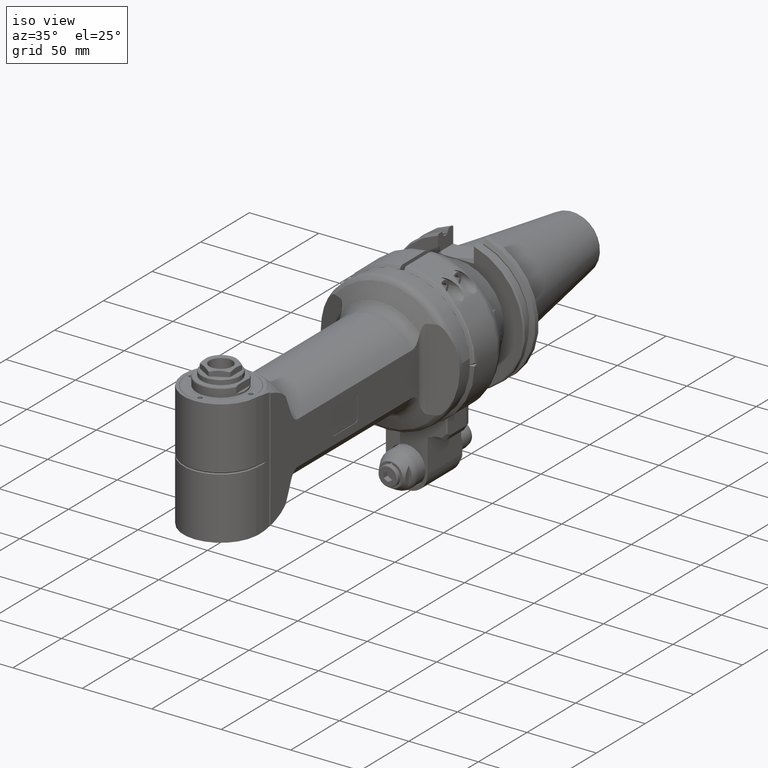
[diagram: clean part render]
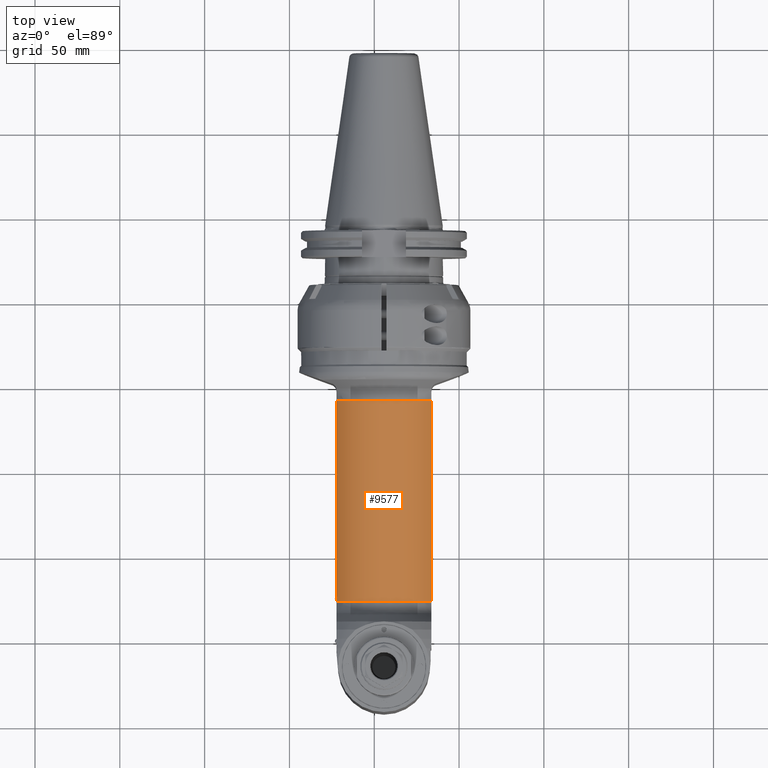
[diagram: tour spotlight — one face highlighted and labeled with its STEP entity id]
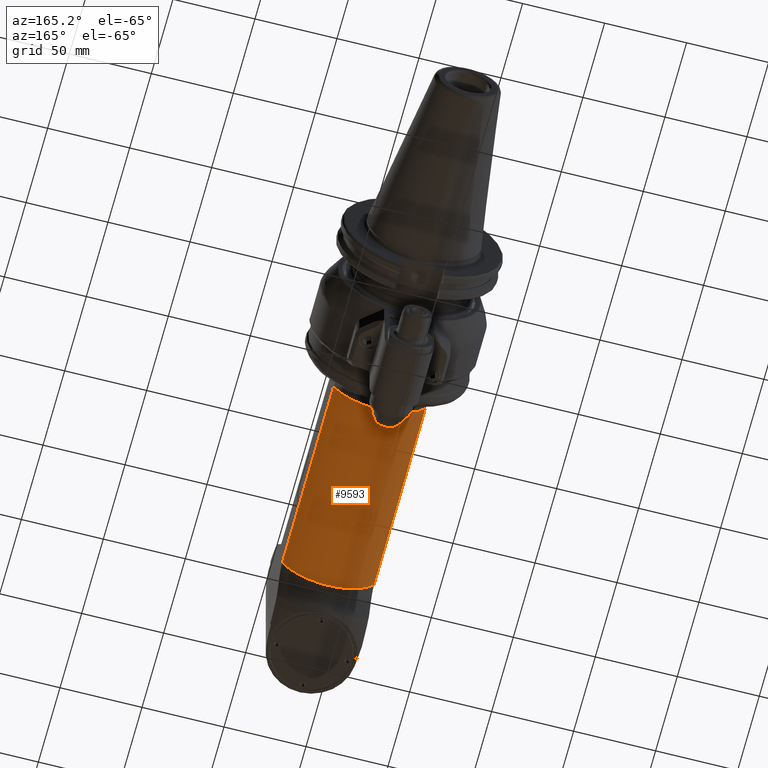
[diagram: tour spotlight — one face highlighted and labeled with its STEP entity id]
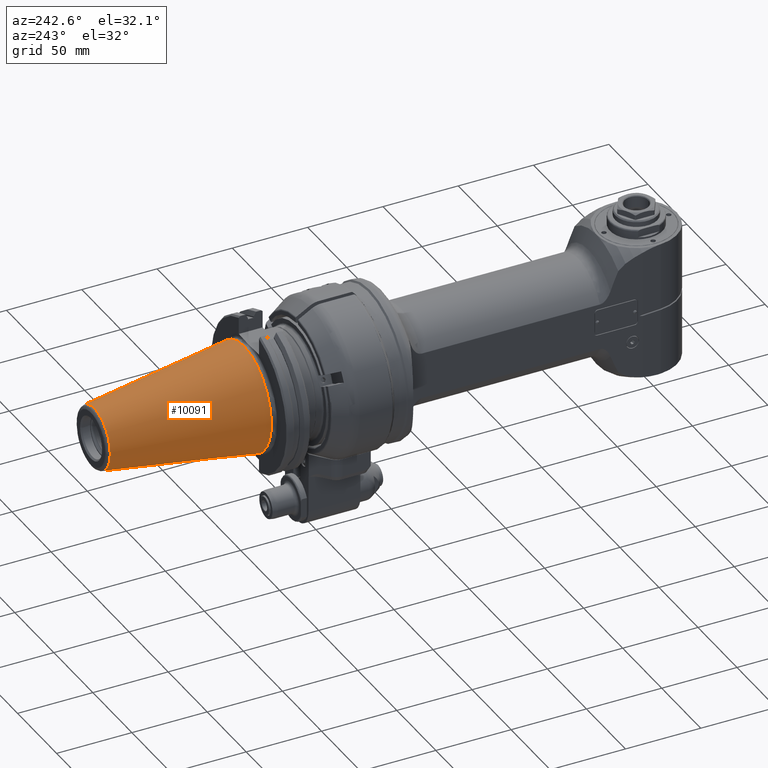
[diagram: tour spotlight — one face highlighted and labeled with its STEP entity id]
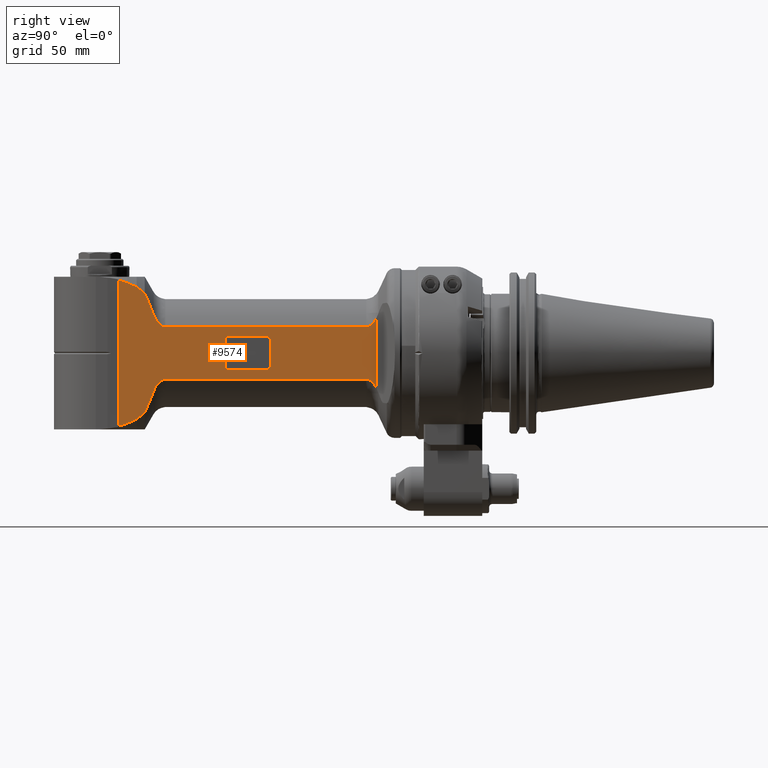
[diagram: tour spotlight — one face highlighted and labeled with its STEP entity id]
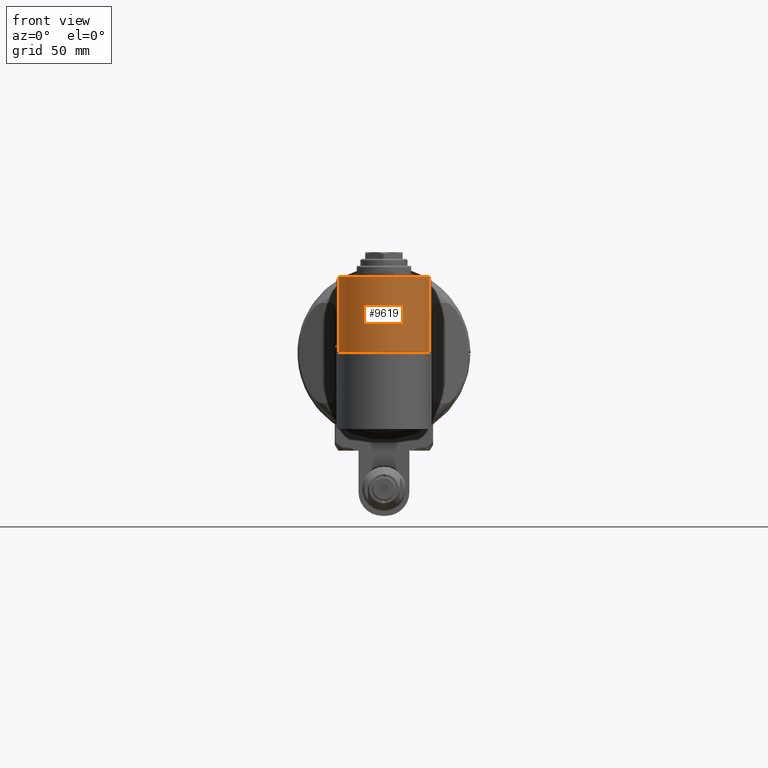
[diagram: tour spotlight — one face highlighted and labeled with its STEP entity id]
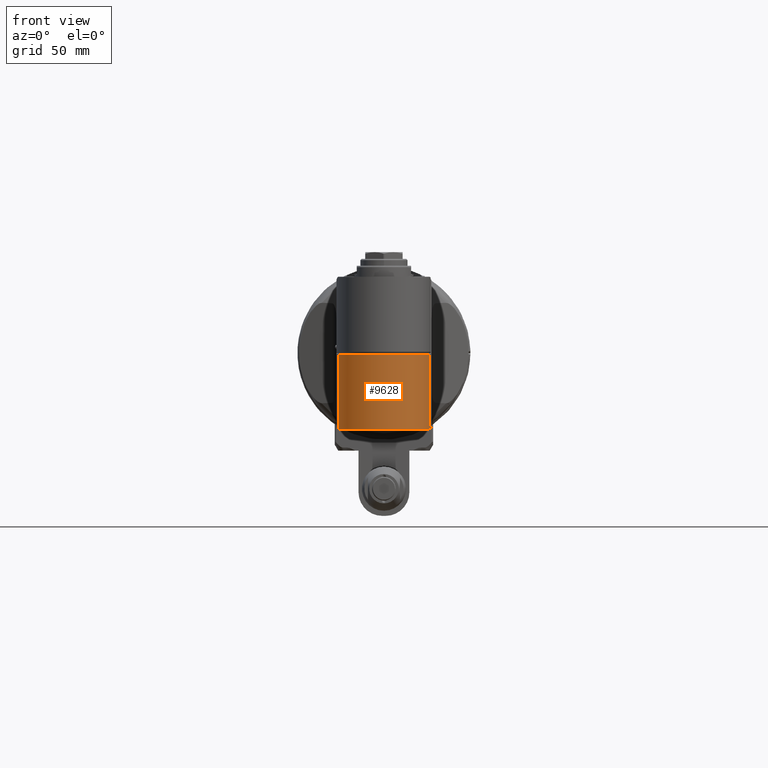
[diagram: tour spotlight — one face highlighted and labeled with its STEP entity id]
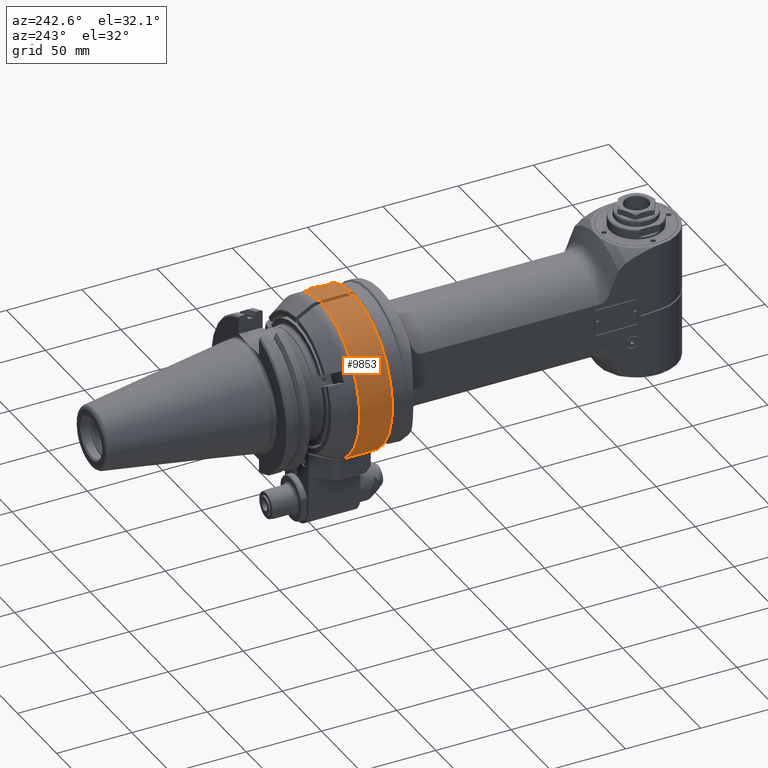
[diagram: tour spotlight — one face highlighted and labeled with its STEP entity id]
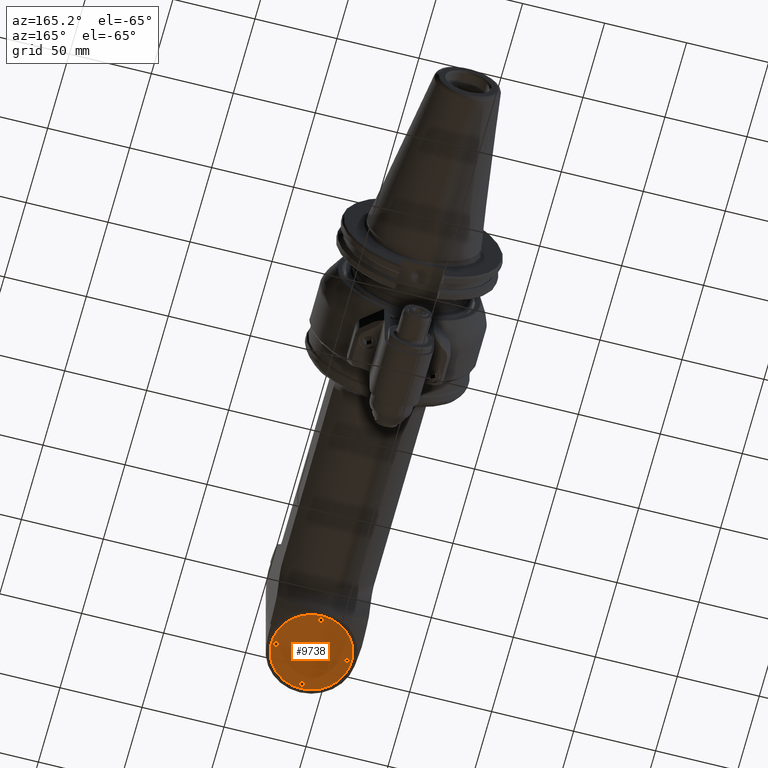
[diagram: tour spotlight — one face highlighted and labeled with its STEP entity id]
A machine part: a face-by-face anatomy tour. The part has 596 B-rep faces; the first image is the clean iso view, then the 8 largest visible faces are spotlighted one at a time (largest first), each with its STEP entity span.

Face 1 — top view, entity #9577. In plain terms, the highlighted cylindrical surface (partial cylindrical patch) has radius 32 mm, axis along (-0, 1, 0).
Definition (entity closure, byte-faithful):
#612=CYLINDRICAL_SURFACE('',#10303,32.);
#776=CIRCLE('',#10301,32.);
#778=CIRCLE('',#10304,32.);
#1339=FACE_OUTER_BOUND('',#1936,.T.);
#1936=EDGE_LOOP('',(#6411,#6412,#6413,#6414));
#2619=LINE('',#14576,#3278);
#2626=LINE('',#14740,#3285);
#3278=VECTOR('',#11511,118.3910979735);
#3285=VECTOR('',#11534,118.3910979735);
#3941=VERTEX_POINT('',#14562);
#3942=VERTEX_POINT('',#14575);
#3964=VERTEX_POINT('',#14715);
#3967=VERTEX_POINT('',#14739);
#4901=EDGE_CURVE('',#3942,#3941,#2619,.T.);
#4926=EDGE_CURVE('',#3964,#3941,#776,.T.);
#4930=EDGE_CURVE('',#3964,#3967,#2626,.T.);
#4931=EDGE_CURVE('',#3942,#3967,#778,.T.);
#6411=ORIENTED_EDGE('',*,*,#4926,.F.);
#6412=ORIENTED_EDGE('',*,*,#4930,.T.);
#6413=ORIENTED_EDGE('',*,*,#4931,.F.);
#6414=ORIENTED_EDGE('',*,*,#4901,.T.);
#9577=ADVANCED_FACE('',(#1339),#612,.T.);
#10301=AXIS2_PLACEMENT_3D('',#14716,#11528,#11529);
#10303=AXIS2_PLACEMENT_3D('',#14738,#11532,#11533);
#10304=AXIS2_PLACEMENT_3D('',#14741,#11535,#11536);
#11511=DIRECTION('',(-1.,0.,0.));
#11528=DIRECTION('center_axis',(-1.,0.,0.));
#11529=DIRECTION('ref_axis',(0.,-0.484122918275906,-0.875000000000012));
#11532=DIRECTION('center_axis',(-1.,0.,0.));
#11533=DIRECTION('ref_axis',(0.,-1.,0.));
#11534=DIRECTION('',(1.,0.,0.));
#11535=DIRECTION('center_axis',(1.,0.,0.));
#11536=DIRECTION('ref_axis',(0.,-1.,0.));
#14562=CARTESIAN_POINT('',(32.99009987301,-15.49193338483,28.));
#14575=CARTESIAN_POINT('',(151.3811978465,-15.49193338483,28.));
#14576=CARTESIAN_POINT('',(151.3811978465,-15.49193338483,28.));
#14715=CARTESIAN_POINT('',(32.99009987301,-15.49193338483,-28.));
#14716=CARTESIAN_POINT('Origin',(32.99009987301,0.,0.));
#14738=CARTESIAN_POINT('Origin',(41.64644709714,0.,0.));
#14739=CARTESIAN_POINT('',(151.3811978465,-15.49193338483,-28.));
#14740=CARTESIAN_POINT('',(32.99009987301,-15.49193338483,-28.));
#14741=CARTESIAN_POINT('Origin',(151.3811978465,0.,0.));

Face 2 — auxiliary view, entity #9593. In plain terms, the highlighted cylindrical surface (partial cylindrical patch) has radius 32 mm, axis along (-0, 1, 0).
Definition (entity closure, byte-faithful):
#614=CYLINDRICAL_SURFACE('',#10342,32.);
#796=CIRCLE('',#10340,32.);
#798=CIRCLE('',#10343,32.);
#1355=FACE_OUTER_BOUND('',#1955,.T.);
#1955=EDGE_LOOP('',(#6530,#6531,#6532,#6533));
#2621=LINE('',#14642,#3280);
#2639=LINE('',#14985,#3298);
#3280=VECTOR('',#11513,118.3910979735);
#3298=VECTOR('',#11605,118.3910979735);
#3953=VERTEX_POINT('',#14626);
#3954=VERTEX_POINT('',#14641);
#4009=VERTEX_POINT('',#14971);
#4010=VERTEX_POINT('',#14984);
#4913=EDGE_CURVE('',#3954,#3953,#2621,.T.);
#4986=EDGE_CURVE('',#4010,#4009,#2639,.T.);
#5013=EDGE_CURVE('',#3954,#4009,#796,.T.);
#5015=EDGE_CURVE('',#4010,#3953,#798,.T.);
#6530=ORIENTED_EDGE('',*,*,#5013,.F.);
#6531=ORIENTED_EDGE('',*,*,#4913,.T.);
#6532=ORIENTED_EDGE('',*,*,#5015,.F.);
#6533=ORIENTED_EDGE('',*,*,#4986,.T.);
#9593=ADVANCED_FACE('',(#1355),#614,.T.);
#10340=AXIS2_PLACEMENT_3D('',#15116,#11628,#11629);
#10342=AXIS2_PLACEMENT_3D('',#15118,#11632,#11633);
#10343=AXIS2_PLACEMENT_3D('',#15119,#11634,#11635);
#11513=DIRECTION('',(1.,0.,0.));
#11605=DIRECTION('',(-1.,0.,0.));
#11628=DIRECTION('center_axis',(-1.,0.,0.));
#11629=DIRECTION('ref_axis',(0.,0.484122918275906,0.875000000000012));
#11632=DIRECTION('center_axis',(-1.,0.,0.));
#11633=DIRECTION('ref_axis',(0.,1.,1.22464679914735E-16));
#11634=DIRECTION('center_axis',(1.,0.,0.));
#11635=DIRECTION('ref_axis',(0.,1.,0.));
#14626=CARTESIAN_POINT('',(151.3811978465,15.49193338483,28.));
#14641=CARTESIAN_POINT('',(32.99009987301,15.49193338483,28.));
#14642=CARTESIAN_POINT('',(32.99009987301,15.49193338483,28.));
#14971=CARTESIAN_POINT('',(32.99009987301,15.49193338483,-28.));
#14984=CARTESIAN_POINT('',(151.3811978465,15.49193338483,-28.));
#14985=CARTESIAN_POINT('',(151.3811978465,15.49193338483,-28.));
#15116=CARTESIAN_POINT('Origin',(32.99009987301,0.,0.));
#15118=CARTESIAN_POINT('Origin',(41.64644709714,0.,0.));
#15119=CARTESIAN_POINT('Origin',(151.3811978465,0.,0.));

Face 3 — auxiliary view, entity #10091. In plain terms, the highlighted conical surface has half-angle 8.297 deg.
Definition (entity closure, byte-faithful):
#175=CONICAL_SURFACE('',#11362,27.67265681028,0.144812411498922);
#1291=CIRCLE('',#11360,34.925);
#1292=CIRCLE('',#11361,34.925);
#1293=CIRCLE('',#11363,20.42031362057);
#1294=CIRCLE('',#11364,20.42031362057);
#1853=FACE_OUTER_BOUND('',#2528,.T.);
#2528=EDGE_LOOP('',(#8955,#8956,#8957,#8958,#8959,#8960));
#3192=LINE('',#20253,#3851);
#3851=VECTOR('',#14218,27.67265681028);
#4805=VERTEX_POINT('',#20246);
#4806=VERTEX_POINT('',#20247);
#4807=VERTEX_POINT('',#20252);
#4808=VERTEX_POINT('',#20254);
#6215=EDGE_CURVE('',#4805,#4806,#1291,.T.);
#6217=EDGE_CURVE('',#4806,#4805,#1292,.T.);
#6218=EDGE_CURVE('',#4805,#4807,#3192,.T.);
#6219=EDGE_CURVE('',#4808,#4807,#1293,.T.);
#6220=EDGE_CURVE('',#4807,#4808,#1294,.T.);
#8955=ORIENTED_EDGE('',*,*,#6215,.F.);
#8956=ORIENTED_EDGE('',*,*,#6218,.T.);
#8957=ORIENTED_EDGE('',*,*,#6219,.F.);
#8958=ORIENTED_EDGE('',*,*,#6220,.F.);
#8959=ORIENTED_EDGE('',*,*,#6218,.F.);
#8960=ORIENTED_EDGE('',*,*,#6217,.F.);
#10091=ADVANCED_FACE('',(#1853),#175,.T.);
#11360=AXIS2_PLACEMENT_3D('',#20248,#14211,#14212);
#11361=AXIS2_PLACEMENT_3D('',#20250,#14214,#14215);
#11362=AXIS2_PLACEMENT_3D('',#20251,#14216,#14217);
#11363=AXIS2_PLACEMENT_3D('',#20255,#14219,#14220);
#11364=AXIS2_PLACEMENT_3D('',#20256,#14221,#14222);
#14211=DIRECTION('center_axis',(0.,-1.,0.));
#14212=DIRECTION('ref_axis',(0.,0.,1.));
#14214=DIRECTION('center_axis',(0.,-1.,0.));
#14215=DIRECTION('ref_axis',(0.,0.,1.));
#14216=DIRECTION('center_axis',(0.,-1.,0.));
#14217=DIRECTION('ref_axis',(0.,0.,1.));
#14218=DIRECTION('',(-1.76724869581176E-17,0.98953299358046,0.144306807239621));
#14219=DIRECTION('center_axis',(0.,1.,0.));
#14220=DIRECTION('ref_axis',(0.,0.,1.));
#14221=DIRECTION('center_axis',(0.,1.,0.));
#14222=DIRECTION('ref_axis',(0.,0.,1.));
#20246=CARTESIAN_POINT('',(0.,74.5,-34.925));
#20247=CARTESIAN_POINT('',(4.27707894602218E-15,74.4999999999999,34.9250000000004));
#20248=CARTESIAN_POINT('Origin',(0.,74.5,0.));
#20250=CARTESIAN_POINT('Origin',(0.,74.5,0.));
#20251=CARTESIAN_POINT('Origin',(0.,124.230383509,0.));
#20252=CARTESIAN_POINT('',(2.50076717129998E-15,173.960767018098,-20.4203136205566));
#20253=CARTESIAN_POINT('',(3.38892305866126E-15,124.230383509,-27.67265681028));
#20254=CARTESIAN_POINT('',(-20.42031362057,173.9607670181,-2.50076717130162E-15));
#20255=CARTESIAN_POINT('Origin',(0.,173.9607670181,0.));
#20256=CARTESIAN_POINT('Origin',(0.,173.9607670181,0.));

Face 4 — right view, entity #9574. In plain terms, the highlighted planar face has unit normal (-1, -0, 0).
Definition (entity closure, byte-faithful):
#231=FACE_BOUND('',#1933,.T.);
#316=(
BOUNDED_CURVE()
B_SPLINE_CURVE(2,(#14593,#14594,#14595),.UNSPECIFIED.,.F.,.F.)
B_SPLINE_CURVE_WITH_KNOTS((3,3),(2.03905497828461,3.44407312542204),
 .UNSPECIFIED.)
CURVE()
GEOMETRIC_REPRESENTATION_ITEM()
RATIONAL_B_SPLINE_CURVE((1.39135917011265,1.50428489523826,1.58701905543919))
REPRESENTATION_ITEM('')
);
#317=(
BOUNDED_CURVE()
B_SPLINE_CURVE(2,(#14597,#14598,#14599),.UNSPECIFIED.,.F.,.F.)
B_SPLINE_CURVE_WITH_KNOTS((3,3),(0.672694750629335,1.01635820032656),
 .UNSPECIFIED.)
CURVE()
GEOMETRIC_REPRESENTATION_ITEM()
RATIONAL_B_SPLINE_CURVE((1.09614308002075,1.11935469989397,1.14119005597969))
REPRESENTATION_ITEM('')
);
#318=(
BOUNDED_CURVE()
B_SPLINE_CURVE(2,(#14601,#14602,#14603),.UNSPECIFIED.,.F.,.F.)
B_SPLINE_CURVE_WITH_KNOTS((3,3),(0.271465993873518,0.534546793771528),
 .UNSPECIFIED.)
CURVE()
GEOMETRIC_REPRESENTATION_ITEM()
RATIONAL_B_SPLINE_CURVE((1.02892391246967,1.04269703277794,1.05600085717814))
REPRESENTATION_ITEM('')
);
#319=(
BOUNDED_CURVE()
B_SPLINE_CURVE(2,(#14605,#14606,#14607),.UNSPECIFIED.,.F.,.F.)
B_SPLINE_CURVE_WITH_KNOTS((3,3),(0.055537346833267,0.267471575188214),
 .UNSPECIFIED.)
CURVE()
GEOMETRIC_REPRESENTATION_ITEM()
RATIONAL_B_SPLINE_CURVE((1.00475750015511,1.01380938808157,1.02266603537252))
REPRESENTATION_ITEM('')
);
#320=(
BOUNDED_CURVE()
B_SPLINE_CURVE(2,(#14611,#14612,#14613),.UNSPECIFIED.,.F.,.F.)
B_SPLINE_CURVE_WITH_KNOTS((3,3),(19.4953049597711,19.7072392303483),
 .UNSPECIFIED.)
CURVE()
GEOMETRIC_REPRESENTATION_ITEM()
RATIONAL_B_SPLINE_CURVE((1.02266613989085,1.01380949169473,1.00475760284315))
REPRESENTATION_ITEM('')
);
#321=(
BOUNDED_CURVE()
B_SPLINE_CURVE(2,(#14615,#14616,#14617),.UNSPECIFIED.,.F.,.F.)
B_SPLINE_CURVE_WITH_KNOTS((3,3),(15.4491780936748,15.7122429200567),
 .UNSPECIFIED.)
CURVE()
GEOMETRIC_REPRESENTATION_ITEM()
RATIONAL_B_SPLINE_CURVE((1.0559652874169,1.04266191113553,1.02888925475358))
REPRESENTATION_ITEM('')
);
#322=(
BOUNDED_CURVE()
B_SPLINE_CURVE(2,(#14619,#14620,#14621),.UNSPECIFIED.,.F.,.F.)
B_SPLINE_CURVE_WITH_KNOTS((3,3),(11.9199200040541,12.263555348694),
 .UNSPECIFIED.)
CURVE()
GEOMETRIC_REPRESENTATION_ITEM()
RATIONAL_B_SPLINE_CURVE((1.14112647971063,1.11929234008351,1.09608201334124))
REPRESENTATION_ITEM('')
);
#323=(
BOUNDED_CURVE()
B_SPLINE_CURVE(2,(#14623,#14624,#14625),.UNSPECIFIED.,.F.,.F.)
B_SPLINE_CURVE_WITH_KNOTS((3,3),(11.1423435471514,12.5471695145456),
 .UNSPECIFIED.)
CURVE()
GEOMETRIC_REPRESENTATION_ITEM()
RATIONAL_B_SPLINE_CURVE((1.58681804929736,1.50409436790844,1.39118294555019))
REPRESENTATION_ITEM('')
);
#395=B_SPLINE_CURVE_WITH_KNOTS('',3,(#14563,#14564,#14565,#14566,#14567,
#14568,#14569,#14570,#14571,#14572,#14573,#14574),.UNSPECIFIED.,.F.,.F.,
(4,2,2,2,2,4),(-2.93597407218818,-2.82337724519284,-2.69378102431655,-2.51186335157645,
-2.32994567883634,-2.12339512890314),.UNSPECIFIED.);
#396=B_SPLINE_CURVE_WITH_KNOTS('',3,(#14578,#14579,#14580,#14581,#14582,
#14583,#14584,#14585,#14586,#14587,#14588,#14589,#14590,#14591),
 .UNSPECIFIED.,.F.,.F.,(4,2,2,2,2,2,4),(-3.92307824233944,-3.77852981809237,
-3.54200246554002,-3.36008479279991,-3.17816712005981,-3.04857089918351,
-2.93597407218818),.UNSPECIFIED.);
#397=B_SPLINE_CURVE_WITH_KNOTS('',3,(#14627,#14628,#14629,#14630,#14631,
#14632,#14633,#14634,#14635,#14636,#14637,#14638,#14639,#14640),
 .UNSPECIFIED.,.F.,.F.,(4,2,2,2,2,2,4),(-2.93597407218818,-2.82337724519285,
-2.69378102431655,-2.51186335157645,-2.32994567883634,-2.09341832628399,
-1.94886990203693),.UNSPECIFIED.);
#398=B_SPLINE_CURVE_WITH_KNOTS('',3,(#14643,#14644,#14645,#14646,#14647,
#14648,#14649,#14650,#14651,#14652,#14653,#14654),.UNSPECIFIED.,.F.,.F.,
(4,2,2,2,2,4),(-3.74855301568806,-3.54200246554002,-3.36008479279991,-3.17816712005981,
-3.04857089918352,-2.93597407218818),.UNSPECIFIED.);
#772=CIRCLE('',#10294,2.);
#773=CIRCLE('',#10296,2.);
#774=CIRCLE('',#10297,2.);
#775=CIRCLE('',#10298,2.);
#1336=FACE_OUTER_BOUND('',#1932,.T.);
#1932=EDGE_LOOP('',(#6375,#6376,#6377,#6378,#6379,#6380,#6381,#6382,#6383,
#6384,#6385,#6386,#6387,#6388,#6389,#6390));
#1933=EDGE_LOOP('',(#6391,#6392,#6393,#6394,#6395,#6396,#6397,#6398));
#2612=LINE('',#14538,#3271);
#2618=LINE('',#14561,#3277);
#2619=LINE('',#14576,#3278);
#2620=LINE('',#14609,#3279);
#2621=LINE('',#14642,#3280);
#2622=LINE('',#14656,#3281);
#2623=LINE('',#14660,#3282);
#2624=LINE('',#14664,#3283);
#3271=VECTOR('',#11488,15.5);
#3277=VECTOR('',#11510,41.77019528795);
#3278=VECTOR('',#11511,118.3910979735);
#3279=VECTOR('',#11512,10.);
#3280=VECTOR('',#11513,118.3910979735);
#3281=VECTOR('',#11514,22.5);
#3282=VECTOR('',#11517,15.5);
#3283=VECTOR('',#11520,22.5);
#3930=VERTEX_POINT('',#14535);
#3931=VERTEX_POINT('',#14537);
#3938=VERTEX_POINT('',#14555);
#3939=VERTEX_POINT('',#14559);
#3940=VERTEX_POINT('',#14560);
#3941=VERTEX_POINT('',#14562);
#3942=VERTEX_POINT('',#14575);
#3943=VERTEX_POINT('',#14577);
#3944=VERTEX_POINT('',#14592);
#3945=VERTEX_POINT('',#14596);
#3946=VERTEX_POINT('',#14600);
#3947=VERTEX_POINT('',#14604);
#3948=VERTEX_POINT('',#14608);
#3949=VERTEX_POINT('',#14610);
#3950=VERTEX_POINT('',#14614);
#3951=VERTEX_POINT('',#14618);
#3952=VERTEX_POINT('',#14622);
#3953=VERTEX_POINT('',#14626);
#3954=VERTEX_POINT('',#14641);
#3955=VERTEX_POINT('',#14655);
#3956=VERTEX_POINT('',#14657);
#3957=VERTEX_POINT('',#14659);
#3958=VERTEX_POINT('',#14661);
#3959=VERTEX_POINT('',#14663);
#4888=EDGE_CURVE('',#3931,#3930,#2612,.T.);
#4898=EDGE_CURVE('',#3930,#3938,#772,.T.);
#4899=EDGE_CURVE('',#3939,#3940,#2618,.T.);
#4900=EDGE_CURVE('',#3941,#3939,#395,.T.);
#4901=EDGE_CURVE('',#3942,#3941,#2619,.T.);
#4902=EDGE_CURVE('',#3943,#3942,#396,.T.);
#4903=EDGE_CURVE('',#3944,#3943,#316,.T.);
#4904=EDGE_CURVE('',#3945,#3944,#317,.T.);
#4905=EDGE_CURVE('',#3946,#3945,#318,.T.);
#4906=EDGE_CURVE('',#3947,#3946,#319,.T.);
#4907=EDGE_CURVE('',#3948,#3947,#2620,.T.);
#4908=EDGE_CURVE('',#3949,#3948,#320,.T.);
#4909=EDGE_CURVE('',#3950,#3949,#321,.T.);
#4910=EDGE_CURVE('',#3951,#3950,#322,.T.);
#4911=EDGE_CURVE('',#3952,#3951,#323,.T.);
#4912=EDGE_CURVE('',#3953,#3952,#397,.T.);
#4913=EDGE_CURVE('',#3954,#3953,#2621,.T.);
#4914=EDGE_CURVE('',#3940,#3954,#398,.T.);
#4915=EDGE_CURVE('',#3938,#3955,#2622,.T.);
#4916=EDGE_CURVE('',#3955,#3956,#773,.T.);
#4917=EDGE_CURVE('',#3956,#3957,#2623,.T.);
#4918=EDGE_CURVE('',#3957,#3958,#774,.T.);
#4919=EDGE_CURVE('',#3958,#3959,#2624,.T.);
#4920=EDGE_CURVE('',#3959,#3931,#775,.T.);
#6375=ORIENTED_EDGE('',*,*,#4899,.F.);
#6376=ORIENTED_EDGE('',*,*,#4900,.F.);
#6377=ORIENTED_EDGE('',*,*,#4901,.F.);
#6378=ORIENTED_EDGE('',*,*,#4902,.F.);
#6379=ORIENTED_EDGE('',*,*,#4903,.F.);
#6380=ORIENTED_EDGE('',*,*,#4904,.F.);
#6381=ORIENTED_EDGE('',*,*,#4905,.F.);
#6382=ORIENTED_EDGE('',*,*,#4906,.F.);
#6383=ORIENTED_EDGE('',*,*,#4907,.F.);
#6384=ORIENTED_EDGE('',*,*,#4908,.F.);
#6385=ORIENTED_EDGE('',*,*,#4909,.F.);
#6386=ORIENTED_EDGE('',*,*,#4910,.F.);
#6387=ORIENTED_EDGE('',*,*,#4911,.F.);
#6388=ORIENTED_EDGE('',*,*,#4912,.F.);
#6389=ORIENTED_EDGE('',*,*,#4913,.F.);
#6390=ORIENTED_EDGE('',*,*,#4914,.F.);
#6391=ORIENTED_EDGE('',*,*,#4888,.T.);
#6392=ORIENTED_EDGE('',*,*,#4898,.T.);
#6393=ORIENTED_EDGE('',*,*,#4915,.T.);
#6394=ORIENTED_EDGE('',*,*,#4916,.T.);
#6395=ORIENTED_EDGE('',*,*,#4917,.T.);
#6396=ORIENTED_EDGE('',*,*,#4918,.T.);
#6397=ORIENTED_EDGE('',*,*,#4919,.T.);
#6398=ORIENTED_EDGE('',*,*,#4920,.T.);
#9307=PLANE('',#10295);
#9574=ADVANCED_FACE('',(#1336,#231),#9307,.F.);
#10294=AXIS2_PLACEMENT_3D('',#14557,#11506,#11507);
#10295=AXIS2_PLACEMENT_3D('',#14558,#11508,#11509);
#10296=AXIS2_PLACEMENT_3D('',#14658,#11515,#11516);
#10297=AXIS2_PLACEMENT_3D('',#14662,#11518,#11519);
#10298=AXIS2_PLACEMENT_3D('',#14665,#11521,#11522);
#11488=DIRECTION('',(0.,1.,0.));
#11506=DIRECTION('center_axis',(0.,0.,-1.));
#11507=DIRECTION('ref_axis',(-1.,0.,0.));
#11508=DIRECTION('center_axis',(0.,0.,-1.));
#11509=DIRECTION('ref_axis',(-1.,0.,0.));
#11510=DIRECTION('',(-2.605461445507E-11,1.,6.049025988375E-13));
#11511=DIRECTION('',(-1.,0.,0.));
#11512=DIRECTION('',(0.,-1.,0.));
#11513=DIRECTION('',(1.,0.,0.));
#11514=DIRECTION('',(1.,0.,0.));
#11515=DIRECTION('center_axis',(0.,0.,-1.));
#11516=DIRECTION('ref_axis',(0.,1.,0.));
#11517=DIRECTION('',(0.,-1.,0.));
#11518=DIRECTION('center_axis',(0.,0.,-1.));
#11519=DIRECTION('ref_axis',(1.,0.,0.));
#11520=DIRECTION('',(-1.,0.,0.));
#11521=DIRECTION('center_axis',(0.,0.,-1.));
#11522=DIRECTION('ref_axis',(4.973799150321E-14,-1.,0.));
#14535=CARTESIAN_POINT('',(89.5,7.75,28.));
#14537=CARTESIAN_POINT('',(89.5,-7.75,28.));
#14538=CARTESIAN_POINT('',(89.5,-7.75,28.));
#14555=CARTESIAN_POINT('',(91.5,9.75,28.));
#14557=CARTESIAN_POINT('Origin',(91.5,7.75,28.));
#14558=CARTESIAN_POINT('Origin',(65.03992163408,-45.,28.));
#14559=CARTESIAN_POINT('',(26.80083020114,-20.88509764293,27.99999999999));
#14560=CARTESIAN_POINT('',(26.80083020005,20.88509764501,28.00000000002));
#14561=CARTESIAN_POINT('',(26.80083020114,-20.88509764293,27.99999999999));
#14562=CARTESIAN_POINT('',(32.99009987301,-15.49193338483,28.));
#14563=CARTESIAN_POINT('Ctrl Pts',(32.99009987301,-15.4919333848297,28.));
#14564=CARTESIAN_POINT('Ctrl Pts',(32.6147771163589,-15.4919333848297,28.));
#14565=CARTESIAN_POINT('Ctrl Pts',(32.1698889724911,-15.5620993782773,28.));
#14566=CARTESIAN_POINT('Ctrl Pts',(31.3977248933945,-15.7977099228234,28.));
#14567=CARTESIAN_POINT('Ctrl Pts',(30.9310586317008,-16.0234209939818,28.));
#14568=CARTESIAN_POINT('Ctrl Pts',(30.053798895377,-16.5789816504194,28.));
#14569=CARTESIAN_POINT('Ctrl Pts',(29.550628761613,-17.0081024201193,28.));
#14570=CARTESIAN_POINT('Ctrl Pts',(28.6408811523053,-17.9652022129463,28.));
#14571=CARTESIAN_POINT('Ctrl Pts',(28.233192022949,-18.4921239661789,28.));
#14572=CARTESIAN_POINT('Ctrl Pts',(27.5057921800016,-19.5634036380883,28.));
#14573=CARTESIAN_POINT('Ctrl Pts',(27.1316615896585,-20.2094567222488,28.));
#14574=CARTESIAN_POINT('Ctrl Pts',(26.8008302011102,-20.8850976429154,28.));
#14575=CARTESIAN_POINT('',(151.3811978465,-15.49193338483,28.));
#14576=CARTESIAN_POINT('',(151.3811978465,-15.49193338483,28.));
#14577=CARTESIAN_POINT('',(158.3094010768,-22.62741699797,28.));
#14578=CARTESIAN_POINT('Ctrl Pts',(158.309401076779,-22.6274169979778,28.));
#14579=CARTESIAN_POINT('Ctrl Pts',(158.135199044939,-22.1473726465425,28.));
#14580=CARTESIAN_POINT('Ctrl Pts',(157.934574124956,-21.6588360308148,28.));
#14581=CARTESIAN_POINT('Ctrl Pts',(157.347305959135,-20.3989143849032,28.));
#14582=CARTESIAN_POINT('Ctrl Pts',(156.921636569653,-19.6460707325903,28.));
#14583=CARTESIAN_POINT('Ctrl Pts',(156.138105696561,-18.4921239661789,28.));
#14584=CARTESIAN_POINT('Ctrl Pts',(155.730416567205,-17.9652022129463,28.));
#14585=CARTESIAN_POINT('Ctrl Pts',(154.820668957897,-17.0081024201193,28.));
#14586=CARTESIAN_POINT('Ctrl Pts',(154.317498824133,-16.5789816504194,28.));
#14587=CARTESIAN_POINT('Ctrl Pts',(153.440239087809,-16.0234209939818,28.));
#14588=CARTESIAN_POINT('Ctrl Pts',(152.973572826115,-15.7977099228234,28.));
#14589=CARTESIAN_POINT('Ctrl Pts',(152.201408747019,-15.5620993782773,28.));
#14590=CARTESIAN_POINT('Ctrl Pts',(151.756520603151,-15.4919333848297,28.));
#14591=CARTESIAN_POINT('Ctrl Pts',(151.3811978465,-15.4919333848297,28.));
#14592=CARTESIAN_POINT('',(163.505553565893,-35.2278300211891,27.9999999663342));
#14593=CARTESIAN_POINT('Ctrl Pts',(163.505553553357,-35.2278300268799,28.));
#14594=CARTESIAN_POINT('Ctrl Pts',(160.341636957151,-28.2276005599298,28.));
#14595=CARTESIAN_POINT('Ctrl Pts',(158.309401076753,-22.627416997987,28.));
#14596=CARTESIAN_POINT('',(168.306557192998,-38.9871774622783,27.9999999732539));
#14597=CARTESIAN_POINT('Ctrl Pts',(168.306557193698,-38.9871774616585,28.));
#14598=CARTESIAN_POINT('Ctrl Pts',(165.784458419852,-37.0468690861524,28.));
#14599=CARTESIAN_POINT('Ctrl Pts',(163.505553595417,-35.2278299842281,28.));
#14600=CARTESIAN_POINT('',(173.801511974997,-41.4246303787763,27.9999999918315));
#14601=CARTESIAN_POINT('Ctrl Pts',(173.801511976008,-41.4246303766251,28.));
#14602=CARTESIAN_POINT('Ctrl Pts',(170.970752707287,-40.1810319362775,28.));
#14603=CARTESIAN_POINT('Ctrl Pts',(168.3065572063,-38.987177432899,28.));
#14604=CARTESIAN_POINT('',(178.99000135961,-43.0924361004242,27.9999994453962));
#14605=CARTESIAN_POINT('Ctrl Pts',(178.990001676871,-43.0924351075719,28.));
#14606=CARTESIAN_POINT('Ctrl Pts',(176.344563688575,-42.2470983647563,28.));
#14607=CARTESIAN_POINT('Ctrl Pts',(173.80151197749,-41.4246303712228,28.));
#14608=CARTESIAN_POINT('',(178.99000135961,43.0924361004242,27.9999994453962));
#14609=CARTESIAN_POINT('',(178.99,-22.5,28.));
#14610=CARTESIAN_POINT('',(173.801511974996,41.424630378776,27.9999999918316));
#14611=CARTESIAN_POINT('Ctrl Pts',(173.801511977489,41.4246303712225,28.));
#14612=CARTESIAN_POINT('Ctrl Pts',(176.344563688575,42.2470983647561,28.));
#14613=CARTESIAN_POINT('Ctrl Pts',(178.990001676871,43.0924351075719,28.));
#14614=CARTESIAN_POINT('',(168.306557192998,38.9871774622785,27.9999999732538));
#14615=CARTESIAN_POINT('Ctrl Pts',(168.3065572063,38.9871774328991,28.));
#14616=CARTESIAN_POINT('Ctrl Pts',(170.970752707287,40.1810319362774,28.));
#14617=CARTESIAN_POINT('Ctrl Pts',(173.801511976008,41.4246303766249,28.));
#14618=CARTESIAN_POINT('',(163.505553565892,35.2278300211879,27.9999999663346));
#14619=CARTESIAN_POINT('Ctrl Pts',(163.505553595416,35.2278299842274,28.));
#14620=CARTESIAN_POINT('Ctrl Pts',(165.784458419852,37.0468690861521,28.));
#14621=CARTESIAN_POINT('Ctrl Pts',(168.306557193698,38.9871774616587,28.));
#14622=CARTESIAN_POINT('',(158.3094010768,22.62741699797,28.));
#14623=CARTESIAN_POINT('Ctrl Pts',(158.309401076753,22.6274169979872,28.));
#14624=CARTESIAN_POINT('Ctrl Pts',(160.341636957151,28.2276005599294,28.));
#14625=CARTESIAN_POINT('Ctrl Pts',(163.505553553356,35.2278300268786,28.));
#14626=CARTESIAN_POINT('',(151.3811978465,15.49193338483,28.));
#14627=CARTESIAN_POINT('Ctrl Pts',(151.3811978465,15.4919333848297,28.));
#14628=CARTESIAN_POINT('Ctrl Pts',(151.756520603151,15.4919333848297,28.));
#14629=CARTESIAN_POINT('Ctrl Pts',(152.201408747019,15.5620993782773,28.));
#14630=CARTESIAN_POINT('Ctrl Pts',(152.973572826115,15.7977099228234,28.));
#14631=CARTESIAN_POINT('Ctrl Pts',(153.440239087809,16.0234209939818,28.));
#14632=CARTESIAN_POINT('Ctrl Pts',(154.317498824133,16.5789816504194,28.));
#14633=CARTESIAN_POINT('Ctrl Pts',(154.820668957897,17.0081024201193,28.));
#14634=CARTESIAN_POINT('Ctrl Pts',(155.730416567205,17.9652022129463,28.));
#14635=CARTESIAN_POINT('Ctrl Pts',(156.138105696561,18.4921239661789,28.));
#14636=CARTESIAN_POINT('Ctrl Pts',(156.921636569653,19.6460707325903,28.));
#14637=CARTESIAN_POINT('Ctrl Pts',(157.347305959135,20.3989143849032,28.));
#14638=CARTESIAN_POINT('Ctrl Pts',(157.934574124956,21.6588360308148,28.));
#14639=CARTESIAN_POINT('Ctrl Pts',(158.135199044939,22.1473726465425,28.));
#14640=CARTESIAN_POINT('Ctrl Pts',(158.309401076778,22.6274169979778,28.));
#14641=CARTESIAN_POINT('',(32.99009987301,15.49193338483,28.));
#14642=CARTESIAN_POINT('',(32.99009987301,15.49193338483,28.));
#14643=CARTESIAN_POINT('Ctrl Pts',(26.8008302000779,20.8850976450237,28.));
#14644=CARTESIAN_POINT('Ctrl Pts',(27.1316615888836,20.2094567235945,28.));
#14645=CARTESIAN_POINT('Ctrl Pts',(27.5057921795993,19.5634036386808,28.));
#14646=CARTESIAN_POINT('Ctrl Pts',(28.233192022949,18.4921239661789,28.));
#14647=CARTESIAN_POINT('Ctrl Pts',(28.6408811523053,17.9652022129463,28.));
#14648=CARTESIAN_POINT('Ctrl Pts',(29.550628761613,17.0081024201193,28.));
#14649=CARTESIAN_POINT('Ctrl Pts',(30.053798895377,16.5789816504194,28.));
#14650=CARTESIAN_POINT('Ctrl Pts',(30.9310586317008,16.0234209939818,28.));
#14651=CARTESIAN_POINT('Ctrl Pts',(31.3977248933945,15.7977099228234,28.));
#14652=CARTESIAN_POINT('Ctrl Pts',(32.1698889724911,15.5620993782773,28.));
#14653=CARTESIAN_POINT('Ctrl Pts',(32.6147771163589,15.4919333848297,28.));
#14654=CARTESIAN_POINT('Ctrl Pts',(32.99009987301,15.4919333848297,28.));
#14655=CARTESIAN_POINT('',(114.,9.75,28.));
#14656=CARTESIAN_POINT('',(91.5,9.75,28.));
#14657=CARTESIAN_POINT('',(116.,7.75,28.));
#14658=CARTESIAN_POINT('Origin',(114.,7.75,28.));
#14659=CARTESIAN_POINT('',(116.,-7.75,28.));
#14660=CARTESIAN_POINT('',(116.,7.75,28.));
#14661=CARTESIAN_POINT('',(114.,-9.75,28.));
#14662=CARTESIAN_POINT('Origin',(114.,-7.75,28.));
#14663=CARTESIAN_POINT('',(91.5,-9.75,28.));
#14664=CARTESIAN_POINT('',(114.,-9.75,28.));
#14665=CARTESIAN_POINT('Origin',(91.5,-7.75,28.));

Face 5 — front view, entity #9619. In plain terms, the highlighted cylindrical surface (partial cylindrical patch) has radius 27 mm, axis along (-0, 0, -1).
Definition (entity closure, byte-faithful):
#618=CYLINDRICAL_SURFACE('',#10400,27.);
#822=CIRCLE('',#10398,27.);
#824=CIRCLE('',#10401,27.);
#1381=FACE_OUTER_BOUND('',#1983,.T.);
#1983=EDGE_LOOP('',(#6658,#6659,#6660,#6661));
#2655=LINE('',#15305,#3314);
#2656=LINE('',#15308,#3315);
#3314=VECTOR('',#11757,44.33431457505);
#3315=VECTOR('',#11760,44.33431457505);
#4052=VERTEX_POINT('',#15272);
#4053=VERTEX_POINT('',#15273);
#4061=VERTEX_POINT('',#15304);
#4062=VERTEX_POINT('',#15306);
#5055=EDGE_CURVE('',#4052,#4053,#822,.T.);
#5065=EDGE_CURVE('',#4052,#4061,#2655,.T.);
#5066=EDGE_CURVE('',#4062,#4061,#824,.T.);
#5067=EDGE_CURVE('',#4062,#4053,#2656,.T.);
#6658=ORIENTED_EDGE('',*,*,#5055,.F.);
#6659=ORIENTED_EDGE('',*,*,#5065,.T.);
#6660=ORIENTED_EDGE('',*,*,#5066,.F.);
#6661=ORIENTED_EDGE('',*,*,#5067,.T.);
#9619=ADVANCED_FACE('',(#1381),#618,.T.);
#10398=AXIS2_PLACEMENT_3D('',#15274,#11749,#11750);
#10400=AXIS2_PLACEMENT_3D('',#15303,#11755,#11756);
#10401=AXIS2_PLACEMENT_3D('',#15307,#11758,#11759);
#11749=DIRECTION('center_axis',(0.,-1.,0.));
#11750=DIRECTION('ref_axis',(0.087155742747556,0.,-0.996194698091755));
#11755=DIRECTION('center_axis',(0.,1.,0.));
#11756=DIRECTION('ref_axis',(1.,0.,1.22464679914735E-16));
#11757=DIRECTION('',(1.859123302981E-14,1.,0.));
#11758=DIRECTION('center_axis',(0.,1.,0.));
#11759=DIRECTION('ref_axis',(1.,0.,0.));
#11760=DIRECTION('',(3.013061904831E-14,-1.,0.));
#15272=CARTESIAN_POINT('',(192.3532050542,-45.,-26.89725684848));
#15273=CARTESIAN_POINT('',(192.3532050542,-45.,26.89725684848));
#15274=CARTESIAN_POINT('Origin',(190.,-45.,0.));
#15303=CARTESIAN_POINT('Origin',(190.,-54.0000024,0.));
#15304=CARTESIAN_POINT('',(192.3532050542,-0.6656854249492,-26.89725684848));
#15305=CARTESIAN_POINT('',(192.3532050542,-45.,-26.89725684848));
#15306=CARTESIAN_POINT('',(192.3532050542,-0.6656854249492,26.89725684848));
#15307=CARTESIAN_POINT('Origin',(190.,-0.6656854249492,0.));
#15308=CARTESIAN_POINT('',(192.3532050542,-0.6656854249492,26.89725684848));

Face 6 — front view, entity #9628. In plain terms, the highlighted cylindrical surface (partial cylindrical patch) has radius 27 mm, axis along (-0, 0, -1).
Definition (entity closure, byte-faithful):
#619=CYLINDRICAL_SURFACE('',#10416,27.);
#787=CIRCLE('',#10324,27.);
#829=CIRCLE('',#10417,27.);
#1390=FACE_OUTER_BOUND('',#1992,.T.);
#1992=EDGE_LOOP('',(#6699,#6700,#6701,#6702));
#2634=LINE('',#14955,#3293);
#2661=LINE('',#15336,#3320);
#3293=VECTOR('',#11592,44.33431457505);
#3320=VECTOR('',#11789,44.33431457505);
#3988=VERTEX_POINT('',#14867);
#3998=VERTEX_POINT('',#14937);
#4000=VERTEX_POINT('',#14943);
#4067=VERTEX_POINT('',#15334);
#4971=EDGE_CURVE('',#3998,#3988,#787,.T.);
#4978=EDGE_CURVE('',#4000,#3988,#2634,.T.);
#5079=EDGE_CURVE('',#3998,#4067,#2661,.T.);
#5081=EDGE_CURVE('',#4000,#4067,#829,.T.);
#6699=ORIENTED_EDGE('',*,*,#5081,.F.);
#6700=ORIENTED_EDGE('',*,*,#4978,.T.);
#6701=ORIENTED_EDGE('',*,*,#4971,.F.);
#6702=ORIENTED_EDGE('',*,*,#5079,.T.);
#9628=ADVANCED_FACE('',(#1390),#619,.T.);
#10324=AXIS2_PLACEMENT_3D('',#14939,#11580,#11581);
#10416=AXIS2_PLACEMENT_3D('',#15339,#11794,#11795);
#10417=AXIS2_PLACEMENT_3D('',#15340,#11796,#11797);
#11580=DIRECTION('center_axis',(0.,1.,0.));
#11581=DIRECTION('ref_axis',(0.0871557427478227,0.,0.996194698091731));
#11592=DIRECTION('',(-1.859123302981E-14,1.,0.));
#11789=DIRECTION('',(-2.884846504626E-14,-1.,0.));
#11794=DIRECTION('center_axis',(0.,1.,0.));
#11795=DIRECTION('ref_axis',(1.,0.,9.00424887691599E-15));
#11796=DIRECTION('center_axis',(0.,-1.,0.));
#11797=DIRECTION('ref_axis',(1.,0.,0.));
#14867=CARTESIAN_POINT('',(192.3532050542,45.,-26.89725684848));
#14937=CARTESIAN_POINT('',(192.3532050542,45.,26.89725684848));
#14939=CARTESIAN_POINT('Origin',(190.,45.,0.));
#14943=CARTESIAN_POINT('',(192.3532050542,0.6656854249493,-26.89725684848));
#14955=CARTESIAN_POINT('',(192.3532050542,0.6656854249493,-26.89725684848));
#15334=CARTESIAN_POINT('',(192.3532050542,0.6656854249492,26.89725684848));
#15336=CARTESIAN_POINT('',(192.3532050542,45.,26.89725684848));
#15339=CARTESIAN_POINT('Origin',(190.,-54.0000024,0.));
#15340=CARTESIAN_POINT('Origin',(190.,0.6656854249493,0.));

Face 7 — auxiliary view, entity #9853. In plain terms, the highlighted cylindrical surface (partial cylindrical patch) has radius 51 mm, axis along (0, -1, 0).
Definition (entity closure, byte-faithful):
#55=ELLIPSE('',#10890,144.249783362042,51.);
#56=ELLIPSE('',#10891,144.249783362042,51.);
#272=FACE_BOUND('',#2253,.T.);
#461=B_SPLINE_CURVE_WITH_KNOTS('',3,(#17979,#17980,#17981,#17982,#17983,
#17984),.UNSPECIFIED.,.F.,.F.,(4,2,4),(-0.220144328878827,-0.201175489980687,
0.),.UNSPECIFIED.);
#462=B_SPLINE_CURVE_WITH_KNOTS('',3,(#17985,#17986,#17987,#17988,#17989,
#17990,#17991,#17992,#17993,#17994,#17995,#17996,#17997,#17998,#17999,#18000,
#18001,#18002,#18003,#18004,#18005,#18006,#18007,#18008,#18009,#18010),
 .UNSPECIFIED.,.F.,.F.,(4,2,2,2,2,2,2,2,2,2,2,2,4),(0.,0.201175489980687,
0.402350979961374,0.726790310303929,1.05122964064648,1.44743687444551,1.84364410824453,
2.06341028648597,2.1732933756067,2.28317646472742,2.39305955384814,2.50294264296886,
2.52975105249028),.UNSPECIFIED.);
#463=B_SPLINE_CURVE_WITH_KNOTS('',3,(#18024,#18025,#18026,#18027,#18028,
#18029,#18030,#18031,#18032,#18033,#18034,#18035,#18036,#18037,#18038,#18039,
#18040,#18041,#18042,#18043,#18044,#18045,#18046),.UNSPECIFIED.,.F.,.F.,
(4,2,2,2,2,3,2,2,2,2,4),(-1.23194682408093,-0.835739590281912,-0.439532356482891,
-0.219766178241446,-0.109883089120723,0.,0.0949450193758139,0.189890038751628,
0.520032016318137,0.865269466584616,1.2105069168511),.UNSPECIFIED.);
#464=B_SPLINE_CURVE_WITH_KNOTS('',3,(#18047,#18048,#18049,#18050,#18051,
#18052,#18053,#18054,#18055,#18056,#18057,#18058,#18059,#18060,#18061,#18062,
#18063,#18064),.UNSPECIFIED.,.F.,.F.,(4,2,2,2,2,2,2,2,4),(1.2105069168511,
1.53494624719365,1.8593855775362,2.06056106751689,2.26173655749758,2.46291204747827,
2.66408753745895,2.98852686780151,3.31296619814406),.UNSPECIFIED.);
#696=CYLINDRICAL_SURFACE('',#10884,51.);
#1061=CIRCLE('',#10882,51.);
#1062=CIRCLE('',#10883,51.);
#1063=CIRCLE('',#10885,51.);
#1064=CIRCLE('',#10886,51.);
#1065=CIRCLE('',#10887,51.);
#1066=CIRCLE('',#10888,51.);
#1067=CIRCLE('',#10889,51.);
#1068=CIRCLE('',#10892,51.);
#1615=FACE_OUTER_BOUND('',#2252,.T.);
#2252=EDGE_LOOP('',(#7770,#7771,#7772,#7773,#7774,#7775,#7776,#7777,#7778,
#7779,#7780,#7781,#7782,#7783,#7784,#7785,#7786,#7787));
#2253=EDGE_LOOP('',(#7788,#7789));
#2908=LINE('',#17861,#3567);
#2911=LINE('',#17968,#3570);
#2912=LINE('',#17970,#3571);
#2913=LINE('',#17977,#3572);
#2914=LINE('',#18012,#3573);
#2915=LINE('',#18021,#3574);
#3567=VECTOR('',#12964,18.52539489666);
#3570=VECTOR('',#12983,18.52539489666);
#3571=VECTOR('',#12984,0.6348591411299);
#3572=VECTOR('',#12991,0.6348591411298);
#3573=VECTOR('',#12992,21.74606856517);
#3574=VECTOR('',#13001,21.74606325158);
#4417=VERTEX_POINT('',#17810);
#4418=VERTEX_POINT('',#17860);
#4423=VERTEX_POINT('',#17930);
#4424=VERTEX_POINT('',#17939);
#4425=VERTEX_POINT('',#17941);
#4426=VERTEX_POINT('',#17964);
#4427=VERTEX_POINT('',#17965);
#4428=VERTEX_POINT('',#17967);
#4429=VERTEX_POINT('',#17969);
#4430=VERTEX_POINT('',#17971);
#4431=VERTEX_POINT('',#17973);
#4432=VERTEX_POINT('',#17975);
#4433=VERTEX_POINT('',#17978);
#4434=VERTEX_POINT('',#18011);
#4435=VERTEX_POINT('',#18013);
#4436=VERTEX_POINT('',#18015);
#4437=VERTEX_POINT('',#18017);
#4438=VERTEX_POINT('',#18019);
#4439=VERTEX_POINT('',#18022);
#4440=VERTEX_POINT('',#18023);
#5618=EDGE_CURVE('',#4417,#4418,#2908,.T.);
#5626=EDGE_CURVE('',#4423,#4424,#1061,.T.);
#5628=EDGE_CURVE('',#4425,#4417,#1062,.T.);
#5629=EDGE_CURVE('',#4426,#4427,#1063,.T.);
#5630=EDGE_CURVE('',#4426,#4428,#2911,.T.);
#5631=EDGE_CURVE('',#4428,#4429,#2912,.T.);
#5632=EDGE_CURVE('',#4430,#4429,#1064,.T.);
#5633=EDGE_CURVE('',#4431,#4430,#1065,.T.);
#5634=EDGE_CURVE('',#4432,#4431,#1066,.T.);
#5635=EDGE_CURVE('',#4432,#4418,#2913,.T.);
#5636=EDGE_CURVE('',#4425,#4433,#461,.T.);
#5637=EDGE_CURVE('',#4433,#4424,#462,.T.);
#5638=EDGE_CURVE('',#4423,#4434,#2914,.T.);
#5639=EDGE_CURVE('',#4435,#4434,#1067,.T.);
#5640=EDGE_CURVE('',#4436,#4435,#55,.T.);
#5641=EDGE_CURVE('',#4437,#4436,#56,.T.);
#5642=EDGE_CURVE('',#4438,#4437,#1068,.T.);
#5643=EDGE_CURVE('',#4438,#4427,#2915,.T.);
#5644=EDGE_CURVE('',#4439,#4440,#463,.T.);
#5645=EDGE_CURVE('',#4440,#4439,#464,.T.);
#7770=ORIENTED_EDGE('',*,*,#5629,.F.);
#7771=ORIENTED_EDGE('',*,*,#5630,.T.);
#7772=ORIENTED_EDGE('',*,*,#5631,.T.);
#7773=ORIENTED_EDGE('',*,*,#5632,.F.);
#7774=ORIENTED_EDGE('',*,*,#5633,.F.);
#7775=ORIENTED_EDGE('',*,*,#5634,.F.);
#7776=ORIENTED_EDGE('',*,*,#5635,.T.);
#7777=ORIENTED_EDGE('',*,*,#5618,.F.);
#7778=ORIENTED_EDGE('',*,*,#5628,.F.);
#7779=ORIENTED_EDGE('',*,*,#5636,.T.);
#7780=ORIENTED_EDGE('',*,*,#5637,.T.);
#7781=ORIENTED_EDGE('',*,*,#5626,.F.);
#7782=ORIENTED_EDGE('',*,*,#5638,.T.);
#7783=ORIENTED_EDGE('',*,*,#5639,.F.);
#7784=ORIENTED_EDGE('',*,*,#5640,.F.);
#7785=ORIENTED_EDGE('',*,*,#5641,.F.);
#7786=ORIENTED_EDGE('',*,*,#5642,.F.);
#7787=ORIENTED_EDGE('',*,*,#5643,.T.);
#7788=ORIENTED_EDGE('',*,*,#5644,.T.);
#7789=ORIENTED_EDGE('',*,*,#5645,.T.);
#9853=ADVANCED_FACE('',(#1615,#272),#696,.T.);
#10882=AXIS2_PLACEMENT_3D('',#17940,#12975,#12976);
#10883=AXIS2_PLACEMENT_3D('',#17962,#12977,#12978);
#10884=AXIS2_PLACEMENT_3D('',#17963,#12979,#12980);
#10885=AXIS2_PLACEMENT_3D('',#17966,#12981,#12982);
#10886=AXIS2_PLACEMENT_3D('',#17972,#12985,#12986);
#10887=AXIS2_PLACEMENT_3D('',#17974,#12987,#12988);
#10888=AXIS2_PLACEMENT_3D('',#17976,#12989,#12990);
#10889=AXIS2_PLACEMENT_3D('',#18014,#12993,#12994);
#10890=AXIS2_PLACEMENT_3D('',#18016,#12995,#12996);
#10891=AXIS2_PLACEMENT_3D('',#18018,#12997,#12998);
#10892=AXIS2_PLACEMENT_3D('',#18020,#12999,#13000);
#12964=DIRECTION('',(5.062868653732E-14,-1.,3.451955900272E-14));
#12975=DIRECTION('center_axis',(0.,1.,0.));
#12976=DIRECTION('ref_axis',(0.0294117647058804,0.,0.999567380468613));
#12977=DIRECTION('center_axis',(0.,1.,0.));
#12978=DIRECTION('ref_axis',(0.719066469693323,0.,0.694941301235422));
#12979=DIRECTION('center_axis',(0.,-1.,0.));
#12980=DIRECTION('ref_axis',(1.4663902280623E-10,0.,-1.));
#12981=DIRECTION('center_axis',(0.,1.,0.));
#12982=DIRECTION('ref_axis',(-0.567273574176089,0.,-0.823529411764684));
#12983=DIRECTION('',(-5.043691120953E-14,-1.,3.451955900272E-14));
#12984=DIRECTION('',(0.,-1.,1.119213207666E-14));
#12985=DIRECTION('center_axis',(0.,1.,0.));
#12986=DIRECTION('ref_axis',(-0.54901960784313,0.,-0.835809470037146));
#12987=DIRECTION('center_axis',(0.,1.,0.));
#12988=DIRECTION('ref_axis',(0.54901960784313,0.,-0.835809470037146));
#12989=DIRECTION('center_axis',(0.,1.,0.));
#12990=DIRECTION('ref_axis',(0.567273574176089,0.,-0.823529411764684));
#12991=DIRECTION('',(7.27488584983E-14,1.,2.238426415332E-14));
#12992=DIRECTION('',(1.273469652131E-9,-1.,-3.747115976057E-11));
#12993=DIRECTION('center_axis',(0.,-1.,0.));
#12994=DIRECTION('ref_axis',(0.999826388474475,0.,0.0186331132687895));
#12995=DIRECTION('center_axis',(0.612372435695813,-0.353553390593307,-0.707106781186515));
#12996=DIRECTION('ref_axis',(-0.23145502494317,-0.935414346693472,0.267261241912441));
#12997=DIRECTION('center_axis',(0.612372435695813,-0.353553390593307,0.707106781186515));
#12998=DIRECTION('ref_axis',(0.23145502494317,0.935414346693472,0.267261241912441));
#12999=DIRECTION('center_axis',(0.,-1.,0.));
#13000=DIRECTION('ref_axis',(0.,0.,-1.));
#13001=DIRECTION('',(4.970251645951E-10,1.,1.462479987387E-11));
#17810=CARTESIAN_POINT('',(28.93095228298,24.16025403779,-42.));
#17860=CARTESIAN_POINT('',(28.93095228298,5.63485914113,-42.));
#17861=CARTESIAN_POINT('',(28.93095228298,24.16025403779,-42.));
#17930=CARTESIAN_POINT('',(1.49999997309681,24.16025403784,50.9779364046901));
#17939=CARTESIAN_POINT('',(22.92311419183,24.16025403784,45.55799420242));
#17940=CARTESIAN_POINT('Origin',(0.,24.16025403784,0.));
#17941=CARTESIAN_POINT('',(36.67238995435,24.1602540379,35.44200636301));
#17962=CARTESIAN_POINT('Origin',(0.,24.16025403784,0.));
#17963=CARTESIAN_POINT('Origin',(0.,31.,0.));
#17964=CARTESIAN_POINT('',(-28.93095228298,24.16025403779,-42.));
#17965=CARTESIAN_POINT('',(-1.49999998023586,24.1602540482335,50.9779364044794));
#17966=CARTESIAN_POINT('Origin',(0.,24.16025403784,0.));
#17967=CARTESIAN_POINT('',(-28.93095228298,5.63485914113,-42.));
#17968=CARTESIAN_POINT('',(-28.93095228298,24.16025403779,-42.));
#17969=CARTESIAN_POINT('',(-28.93095228298,5.,-42.));
#17970=CARTESIAN_POINT('',(-28.93095228298,5.63485914113,-42.));
#17971=CARTESIAN_POINT('',(-28.,5.,-42.62628297189));
#17972=CARTESIAN_POINT('Origin',(0.,5.,0.));
#17973=CARTESIAN_POINT('',(28.,5.,-42.62628297189));
#17974=CARTESIAN_POINT('Origin',(0.,5.,0.));
#17975=CARTESIAN_POINT('',(28.93095228298,5.,-42.));
#17976=CARTESIAN_POINT('Origin',(0.,5.,0.));
#17977=CARTESIAN_POINT('',(28.93095228298,5.,-42.));
#17978=CARTESIAN_POINT('',(37.094473715245,22.,35.0000002827));
#17979=CARTESIAN_POINT('Ctrl Pts',(36.6723899543635,24.1602540379089,35.4420063630023));
#17980=CARTESIAN_POINT('Ctrl Pts',(36.6960098703003,24.1030307589439,35.4175664721268));
#17981=CARTESIAN_POINT('Ctrl Pts',(36.7187524665202,24.0451285760537,35.3939854762379));
#17982=CARTESIAN_POINT('Ctrl Pts',(36.9720249281091,23.365962882206,35.1309085087689));
#17983=CARTESIAN_POINT('Ctrl Pts',(37.094473715245,22.6705849666023,35.0000002827));
#17984=CARTESIAN_POINT('Ctrl Pts',(37.094473715245,22.,35.0000002827));
#17985=CARTESIAN_POINT('Ctrl Pts',(37.094473715245,22.,35.0000002827));
#17986=CARTESIAN_POINT('Ctrl Pts',(37.094473715245,21.3294150333977,35.0000002827));
#17987=CARTESIAN_POINT('Ctrl Pts',(36.9720249281091,20.634037117794,35.1309085087689));
#17988=CARTESIAN_POINT('Ctrl Pts',(36.509126684777,19.3927469884163,35.611726144206));
#17989=CARTESIAN_POINT('Ctrl Pts',(36.1687494919773,18.8460087579151,35.9595700839234));
#17990=CARTESIAN_POINT('Ctrl Pts',(35.2033968586434,17.735791859391,36.9109847334653));
#17991=CARTESIAN_POINT('Ctrl Pts',(34.4409934800641,17.2408985110096,37.6305186458188));
#17992=CARTESIAN_POINT('Ctrl Pts',(32.7670730175023,16.6228361137413,39.0967633186736));
#17993=CARTESIAN_POINT('Ctrl Pts',(31.8547771083538,16.5,39.8427250661917));
#17994=CARTESIAN_POINT('Ctrl Pts',(29.9471832487812,16.5,41.3026686740521));
#17995=CARTESIAN_POINT('Ctrl Pts',(28.778013547493,16.6813594560049,42.1275628033903));
#17996=CARTESIAN_POINT('Ctrl Pts',(26.456979520871,17.3971650946717,43.6226298537565));
#17997=CARTESIAN_POINT('Ctrl Pts',(25.3037695427295,17.923954492565,44.2943690865695));
#17998=CARTESIAN_POINT('Ctrl Pts',(23.7624895598246,18.9924338611569,45.1302050030023));
#17999=CARTESIAN_POINT('Ctrl Pts',(23.1928172782629,19.474810450432,45.4238805293447));
#18000=CARTESIAN_POINT('Ctrl Pts',(22.5411184273514,20.3289480905375,45.7488459255632));
#18001=CARTESIAN_POINT('Ctrl Pts',(22.3578474169696,20.6350884897769,45.8382767855729));
#18002=CARTESIAN_POINT('Ctrl Pts',(22.0986788135919,21.2875037271628,45.9637780827712));
#18003=CARTESIAN_POINT('Ctrl Pts',(22.0227149550549,21.6337230362643,46.0000002827));
#18004=CARTESIAN_POINT('Ctrl Pts',(22.0227149550549,22.3662769637357,46.0000002827));
#18005=CARTESIAN_POINT('Ctrl Pts',(22.0986788135919,22.7124962728372,45.9637780827712));
#18006=CARTESIAN_POINT('Ctrl Pts',(22.3578474169696,23.3649115102231,45.8382767855729));
#18007=CARTESIAN_POINT('Ctrl Pts',(22.5411184273514,23.6710519094625,45.7488459255632));
#18008=CARTESIAN_POINT('Ctrl Pts',(22.8113501597235,24.0252263780027,45.6140966286168));
#18009=CARTESIAN_POINT('Ctrl Pts',(22.866366168842,24.0933991389679,45.5865477292858));
#18010=CARTESIAN_POINT('Ctrl Pts',(22.9231141918306,24.1602540378421,45.5579942024262));
#18011=CARTESIAN_POINT('',(1.49999998660699,2.41421355535176,50.9779364042926));
#18012=CARTESIAN_POINT('',(1.499999945521,24.16027520978,50.9779364055));
#18013=CARTESIAN_POINT('',(50.9911458122,2.414213562364,0.9502887767138));
#18014=CARTESIAN_POINT('Origin',(0.,2.414213562373,0.));
#18015=CARTESIAN_POINT('',(51.,4.330127018922,0.));
#18016=CARTESIAN_POINT('Origin',(0.,-84.0044641670873,0.));
#18017=CARTESIAN_POINT('',(50.9911458122,2.414213562368,-0.9502887767115));
#18018=CARTESIAN_POINT('Origin',(0.,-84.0044641670895,0.));
#18019=CARTESIAN_POINT('',(-1.49999998564002,2.41421355484646,50.9779364043204));
#18020=CARTESIAN_POINT('Origin',(0.,2.414213562373,0.));
#18021=CARTESIAN_POINT('',(-1.49999997128,2.414206146768,50.97793640474));
#18022=CARTESIAN_POINT('',(30.99596711028,3.5,40.5000002827));
#18023=CARTESIAN_POINT('',(30.9959671102758,14.5,40.5000002827));
#18024=CARTESIAN_POINT('Ctrl Pts',(30.9959671102758,3.5,40.5000002827));
#18025=CARTESIAN_POINT('Ctrl Pts',(29.9471832487812,3.5,41.3026686740522));
#18026=CARTESIAN_POINT('Ctrl Pts',(28.778013547493,3.68135945600489,42.1275628033903));
#18027=CARTESIAN_POINT('Ctrl Pts',(26.456979520871,4.39716509467172,43.6226298537565));
#18028=CARTESIAN_POINT('Ctrl Pts',(25.3037695427295,4.92395449256504,44.2943690865695));
#18029=CARTESIAN_POINT('Ctrl Pts',(23.7624895598246,5.99243386115686,45.1302050030023));
#18030=CARTESIAN_POINT('Ctrl Pts',(23.1928172782629,6.47481045043199,45.4238805293447));
#18031=CARTESIAN_POINT('Ctrl Pts',(22.5411184273514,7.32894809053752,45.7488459255632));
#18032=CARTESIAN_POINT('Ctrl Pts',(22.3578474169696,7.63508848977688,45.8382767855729));
#18033=CARTESIAN_POINT('Ctrl Pts',(22.0986788135919,8.28750372716278,45.9637780827712));
#18034=CARTESIAN_POINT('Ctrl Pts',(22.0227149550549,8.63372303626426,46.0000002827));
#18035=CARTESIAN_POINT('Ctrl Pts',(22.0227149550549,9.,46.0000002827));
#18036=CARTESIAN_POINT('Ctrl Pts',(22.0227149550549,9.31648339791938,46.0000002827));
#18037=CARTESIAN_POINT('Ctrl Pts',(22.0845156868871,9.6517064771444,45.9705414133334));
#18038=CARTESIAN_POINT('Ctrl Pts',(22.3158805898878,10.2791236415987,45.8586740383155));
#18039=CARTESIAN_POINT('Ctrl Pts',(22.483313327636,10.5722426936705,45.7770585076701));
#18040=CARTESIAN_POINT('Ctrl Pts',(23.2699641340394,11.6843353101904,45.3869345691662));
#18041=CARTESIAN_POINT('Ctrl Pts',(24.2526245503324,12.4029598465647,44.8752150291874));
#18042=CARTESIAN_POINT('Ctrl Pts',(26.0105214218574,13.3974425277095,43.8807323480425));
#18043=CARTESIAN_POINT('Ctrl Pts',(27.0277734960808,13.8085612622241,43.2664368855585));
#18044=CARTESIAN_POINT('Ctrl Pts',(29.06345429342,14.3611168342614,41.9261341817965));
#18045=CARTESIAN_POINT('Ctrl Pts',(30.0821032649561,14.5,41.1994099986278));
#18046=CARTESIAN_POINT('Ctrl Pts',(30.9959671102758,14.5,40.5000002827));
#18047=CARTESIAN_POINT('Ctrl Pts',(30.9959671102758,14.5,40.5000002827));
#18048=CARTESIAN_POINT('Ctrl Pts',(31.8547771083537,14.5,39.8427250661917));
#18049=CARTESIAN_POINT('Ctrl Pts',(32.7670730175023,14.3771638862587,39.0967633186736));
#18050=CARTESIAN_POINT('Ctrl Pts',(34.4409934800641,13.7591014889904,37.6305186458188));
#18051=CARTESIAN_POINT('Ctrl Pts',(35.2033968586434,13.264208140609,36.9109847334653));
#18052=CARTESIAN_POINT('Ctrl Pts',(36.1687494919773,12.1539912420849,35.9595700839234));
#18053=CARTESIAN_POINT('Ctrl Pts',(36.509126684777,11.6072530115837,35.611726144206));
#18054=CARTESIAN_POINT('Ctrl Pts',(36.9720249281091,10.365962882206,35.1309085087689));
#18055=CARTESIAN_POINT('Ctrl Pts',(37.094473715245,9.67058496660229,35.0000002827));
#18056=CARTESIAN_POINT('Ctrl Pts',(37.094473715245,8.32941503339771,35.0000002827));
#18057=CARTESIAN_POINT('Ctrl Pts',(36.9720249281091,7.63403711779401,35.1309085087689));
#18058=CARTESIAN_POINT('Ctrl Pts',(36.509126684777,6.3927469884163,35.611726144206));
#18059=CARTESIAN_POINT('Ctrl Pts',(36.1687494919773,5.84600875791506,35.9595700839234));
#18060=CARTESIAN_POINT('Ctrl Pts',(35.2033968586434,4.73579185939096,36.9109847334653));
#18061=CARTESIAN_POINT('Ctrl Pts',(34.4409934800641,4.2408985110096,37.6305186458188));
#18062=CARTESIAN_POINT('Ctrl Pts',(32.7670730175023,3.6228361137413,39.0967633186736));
#18063=CARTESIAN_POINT('Ctrl Pts',(31.8547771083537,3.5,39.8427250661917));
#18064=CARTESIAN_POINT('Ctrl Pts',(30.9959671102758,3.5,40.5000002827));

Face 8 — auxiliary view, entity #9738. In plain terms, the highlighted planar face has unit normal (0, -0, 1).
Definition (entity closure, byte-faithful):
#254=FACE_BOUND('',#2120,.T.);
#255=FACE_BOUND('',#2121,.T.);
#256=FACE_BOUND('',#2122,.T.);
#257=FACE_BOUND('',#2123,.T.);
#925=CIRCLE('',#10626,24.5);
#926=CIRCLE('',#10628,1.6);
#927=CIRCLE('',#10629,1.6);
#928=CIRCLE('',#10630,1.6);
#929=CIRCLE('',#10631,1.6);
#1500=FACE_OUTER_BOUND('',#2119,.T.);
#2119=EDGE_LOOP('',(#7182));
#2120=EDGE_LOOP('',(#7183));
#2121=EDGE_LOOP('',(#7184));
#2122=EDGE_LOOP('',(#7185));
#2123=EDGE_LOOP('',(#7186));
#4202=VERTEX_POINT('',#15875);
#4203=VERTEX_POINT('',#15879);
#4204=VERTEX_POINT('',#15881);
#4205=VERTEX_POINT('',#15883);
#4206=VERTEX_POINT('',#15885);
#5304=EDGE_CURVE('',#4202,#4202,#925,.T.);
#5305=EDGE_CURVE('',#4203,#4203,#926,.T.);
#5306=EDGE_CURVE('',#4204,#4204,#927,.T.);
#5307=EDGE_CURVE('',#4205,#4205,#928,.T.);
#5308=EDGE_CURVE('',#4206,#4206,#929,.T.);
#7182=ORIENTED_EDGE('',*,*,#5304,.T.);
#7183=ORIENTED_EDGE('',*,*,#5305,.T.);
#7184=ORIENTED_EDGE('',*,*,#5306,.T.);
#7185=ORIENTED_EDGE('',*,*,#5307,.T.);
#7186=ORIENTED_EDGE('',*,*,#5308,.T.);
#9368=PLANE('',#10627);
#9738=ADVANCED_FACE('',(#1500,#254,#255,#256,#257),#9368,.F.);
#10626=AXIS2_PLACEMENT_3D('',#15877,#12320,#12321);
#10627=AXIS2_PLACEMENT_3D('',#15878,#12322,#12323);
#10628=AXIS2_PLACEMENT_3D('',#15880,#12324,#12325);
#10629=AXIS2_PLACEMENT_3D('',#15882,#12326,#12327);
#10630=AXIS2_PLACEMENT_3D('',#15884,#12328,#12329);
#10631=AXIS2_PLACEMENT_3D('',#15886,#12330,#12331);
#12320=DIRECTION('center_axis',(0.,1.,0.));
#12321=DIRECTION('ref_axis',(1.,0.,0.));
#12322=DIRECTION('center_axis',(0.,-1.,0.));
#12323=DIRECTION('ref_axis',(-1.,0.,0.));
#12324=DIRECTION('center_axis',(0.,-1.,0.));
#12325=DIRECTION('ref_axis',(0.,0.,1.));
#12326=DIRECTION('center_axis',(0.,-1.,0.));
#12327=DIRECTION('ref_axis',(0.,0.,1.));
#12328=DIRECTION('center_axis',(0.,-1.,0.));
#12329=DIRECTION('ref_axis',(0.,0.,1.));
#12330=DIRECTION('center_axis',(0.,-1.,0.));
#12331=DIRECTION('ref_axis',(0.,0.,1.));
#15875=CARTESIAN_POINT('',(214.5,45.,0.));
#15877=CARTESIAN_POINT('Origin',(190.,45.,0.));
#15878=CARTESIAN_POINT('Origin',(168.675,45.,0.));
#15879=CARTESIAN_POINT('',(168.5,45.,-1.6));
#15880=CARTESIAN_POINT('Origin',(168.5,45.,0.));
#15881=CARTESIAN_POINT('',(190.,45.,19.9));
#15882=CARTESIAN_POINT('Origin',(190.,45.,21.5));
#15883=CARTESIAN_POINT('',(211.5,45.,-1.6));
#15884=CARTESIAN_POINT('Origin',(211.5,45.,0.));
#15885=CARTESIAN_POINT('',(190.,45.,-23.1));
#15886=CARTESIAN_POINT('Origin',(190.,45.,-21.5));